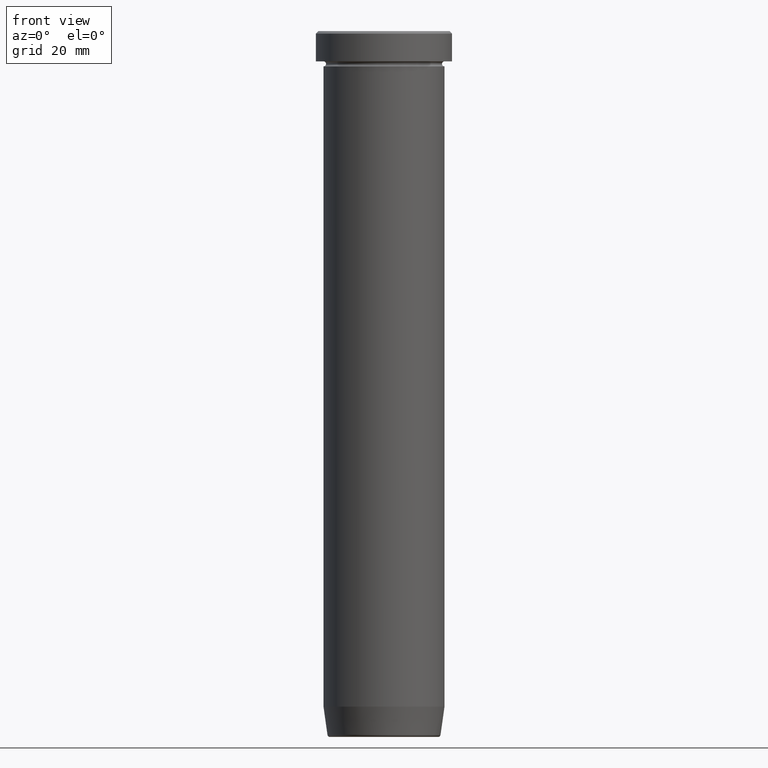
[diagram: clean part render]
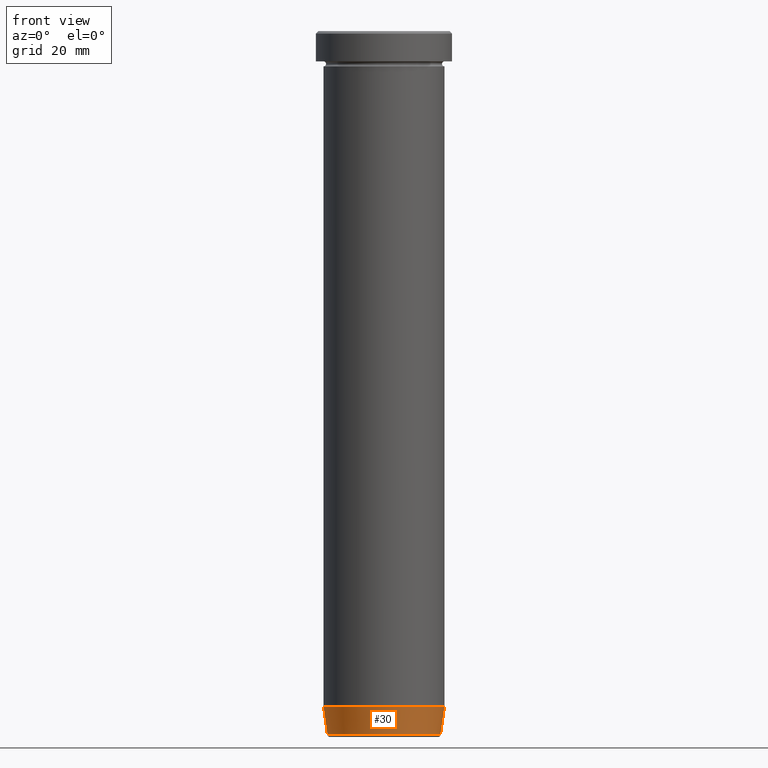
[diagram: same view with one face highlighted and labeled with its STEP entity id]
A machine part, front view. The second image highlights one B-rep face of the part: STEP entity #30.
In plain terms, the highlighted conical surface has half-angle 8 deg.
Its self-contained STEP definition (entity closure, byte-faithful):
#23 = DIRECTION ( 'NONE',  ( -0.1391731009600661872, 1.704378926181564918E-17, 0.9902680687415702510 ) ) ;
#30 = ADVANCED_FACE ( 'NONE', ( #254 ), #91, .T. ) ;
#35 = AXIS2_PLACEMENT_3D ( 'NONE', #338, #522, #169 ) ;
#45 = VECTOR ( 'NONE', #262, 1000.000000000000000 ) ;
#47 = ORIENTED_EDGE ( 'NONE', *, *, #72, .T. ) ;
#70 = VECTOR ( 'NONE', #23, 1000.000000000000000 ) ;
#72 = EDGE_CURVE ( 'NONE', #595, #143, #195, .T. ) ;
#91 = CONICAL_SURFACE ( 'NONE', #492, 11.15675499178564678, 0.1396263401595471132 ) ;
#136 = LINE ( 'NONE', #395, #45 ) ;
#143 = VERTEX_POINT ( 'NONE', #164 ) ;
#158 = DIRECTION ( 'NONE',  ( 1.000000000000000000, 0.000000000000000000, 0.000000000000000000 ) ) ;
#159 = EDGE_CURVE ( 'NONE', #595, #585, #256, .T. ) ;
#164 = CARTESIAN_POINT ( 'NONE',  ( 11.21724565724831990, 0.000000000000000000, -139.5695865504800395 ) ) ;
#169 = DIRECTION ( 'NONE',  ( -1.000000000000000000, 0.000000000000000000, 0.000000000000000000 ) ) ;
#184 = EDGE_LOOP ( 'NONE', ( #502, #47, #488, #396 ) ) ;
#195 = CIRCLE ( 'NONE', #35, 11.21724565724831990 ) ;
#241 = CIRCLE ( 'NONE', #369, 12.00000000000000000 ) ;
#254 = FACE_OUTER_BOUND ( 'NONE', #184, .T. ) ;
#255 = DIRECTION ( 'NONE',  ( 1.000000000000000000, 0.000000000000000000, 0.000000000000000000 ) ) ;
#256 = LINE ( 'NONE', #432, #70 ) ;
#260 = DIRECTION ( 'NONE',  ( -0.000000000000000000, -0.000000000000000000, 1.000000000000000000 ) ) ;
#262 = DIRECTION ( 'NONE',  ( 0.1391731009600661872, 0.000000000000000000, 0.9902680687415702510 ) ) ;
#295 = EDGE_CURVE ( 'NONE', #143, #363, #136, .T. ) ;
#297 = DIRECTION ( 'NONE',  ( -0.000000000000000000, -0.000000000000000000, 1.000000000000000000 ) ) ;
#303 = CARTESIAN_POINT ( 'NONE',  ( -11.21724565724831990, 1.421646278958347253E-15, -139.5695865504800395 ) ) ;
#336 = CARTESIAN_POINT ( 'NONE',  ( 0.000000000000000000, 0.000000000000000000, -140.0000000000000000 ) ) ;
#338 = CARTESIAN_POINT ( 'NONE',  ( 0.000000000000000000, 0.000000000000000000, -139.5695865504800395 ) ) ;
#363 = VERTEX_POINT ( 'NONE', #501 ) ;
#369 = AXIS2_PLACEMENT_3D ( 'NONE', #574, #297, #255 ) ;
#395 = CARTESIAN_POINT ( 'NONE',  ( 11.15675499178564678, 0.000000000000000000, -140.0000000000000000 ) ) ;
#396 = ORIENTED_EDGE ( 'NONE', *, *, #590, .F. ) ;
#431 = CARTESIAN_POINT ( 'NONE',  ( -12.00000000000000000, 1.469576158976823947E-15, -134.0000000000000000 ) ) ;
#432 = CARTESIAN_POINT ( 'NONE',  ( -11.15675499178564678, 1.366308428956154791E-15, -140.0000000000000000 ) ) ;
#488 = ORIENTED_EDGE ( 'NONE', *, *, #295, .T. ) ;
#492 = AXIS2_PLACEMENT_3D ( 'NONE', #336, #260, #158 ) ;
#501 = CARTESIAN_POINT ( 'NONE',  ( 12.00000000000000000, 0.000000000000000000, -134.0000000000000000 ) ) ;
#502 = ORIENTED_EDGE ( 'NONE', *, *, #159, .F. ) ;
#522 = DIRECTION ( 'NONE',  ( -0.000000000000000000, -0.000000000000000000, 1.000000000000000000 ) ) ;
#574 = CARTESIAN_POINT ( 'NONE',  ( 0.000000000000000000, 0.000000000000000000, -134.0000000000000000 ) ) ;
#585 = VERTEX_POINT ( 'NONE', #431 ) ;
#590 = EDGE_CURVE ( 'NONE', #585, #363, #241, .T. ) ;
#595 = VERTEX_POINT ( 'NONE', #303 ) ;